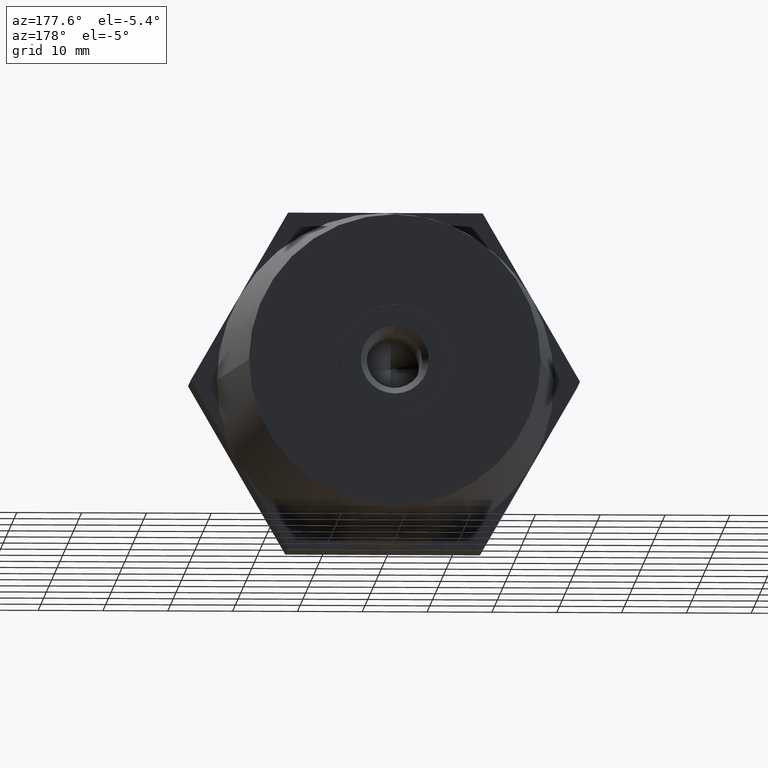
[diagram: clean part render]
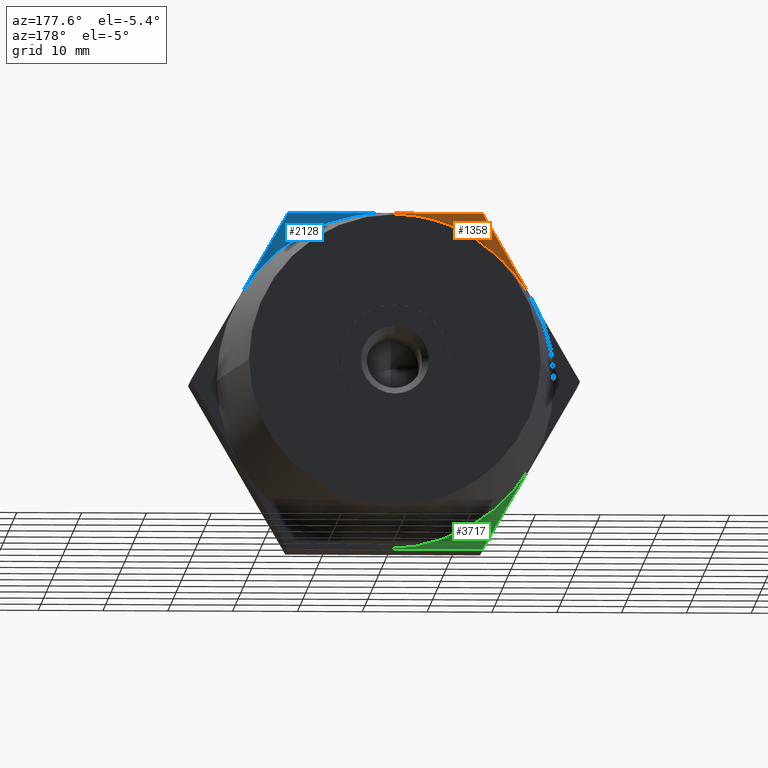
[diagram: same view with three faces highlighted in distinct colors, each labeled with its STEP entity id]
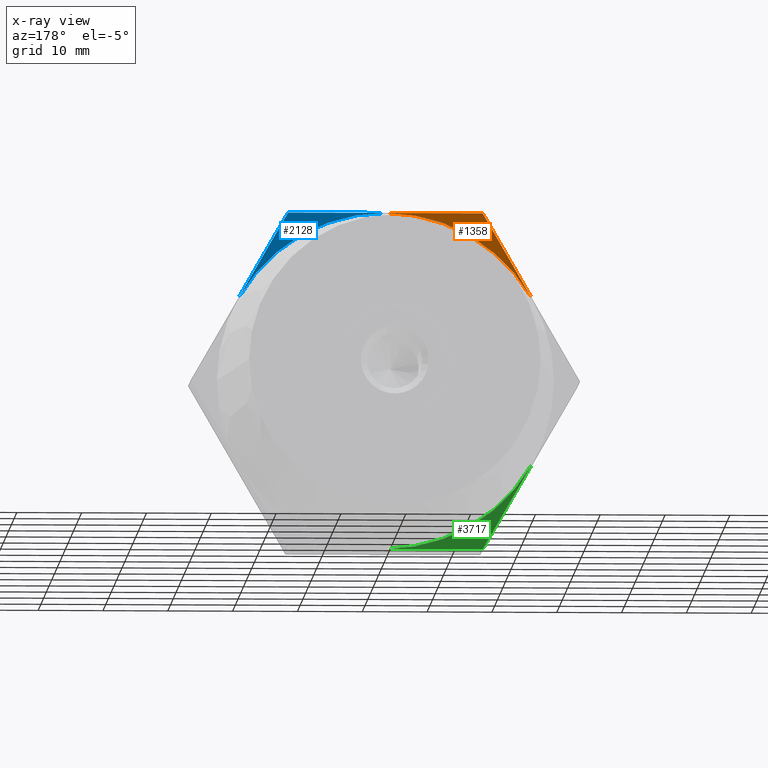
[diagram: x-ray of the same camera — body ghosted, the three highlighted faces saturated]
A machine part, auxiliary view with three faces highlighted in distinct colors.
The next image is the same camera in x-ray (body ghosted, the three faces saturated) — at least one of them is partly hidden behind the body in this view.
Their STEP definitions:

[orange] entity #1358 — the highlighted planar face has unit normal (0, 1, 0).
#791 = EDGE_LOOP ( 'NONE', ( #992, #1049, #3865 ) ) ;
#992 = ORIENTED_EDGE ( 'NONE', *, *, #4724, .F. ) ;
#1049 = ORIENTED_EDGE ( 'NONE', *, *, #1655, .T. ) ;
#1134 = VERTEX_POINT ( 'NONE', #4084 ) ;
#1169 = AXIS2_PLACEMENT_3D ( 'NONE', #2286, #5037, #4249 ) ;
#1202 = DIRECTION ( 'NONE',  ( 1.000000000000000000, 0.0000000000000000000, 1.155626614413199800E-016 ) ) ;
#1358 = ADVANCED_FACE ( 'NONE', ( #2955 ), #4229, .T. ) ;
#1598 = AXIS2_PLACEMENT_3D ( 'NONE', #3887, #4671, #2322 ) ;
#1640 = DIRECTION ( 'NONE',  ( 0.4999999999999998900, 0.0000000000000000000, 0.8660254037844387100 ) ) ;
#1655 = EDGE_CURVE ( 'NONE', #3009, #1134, #3997, .T. ) ;
#2047 = LINE ( 'NONE', #4728, #3042 ) ;
#2286 = CARTESIAN_POINT ( 'NONE',  ( 0.0000000000000000000, 5.000000000000000000, 0.0000000000000000000 ) ) ;
#2322 = DIRECTION ( 'NONE',  ( -1.000000000000000000, -1.334402673828313100E-016, 0.0000000000000000000 ) ) ;
#2809 = CARTESIAN_POINT ( 'NONE',  ( -22.51666049839540000, 5.000000000000000000, 13.00000000000000000 ) ) ;
#2832 = CARTESIAN_POINT ( 'NONE',  ( -30.02221399786055000, 5.000000000000000000, 3.447789823277004700E-015 ) ) ;
#2914 = EDGE_CURVE ( 'NONE', #1134, #4674, #2047, .T. ) ;
#2955 = FACE_OUTER_BOUND ( 'NONE', #791, .T. ) ;
#3009 = VERTEX_POINT ( 'NONE', #2809 ) ;
#3042 = VECTOR ( 'NONE', #1202, 1000.000000000000000 ) ;
#3147 = VECTOR ( 'NONE', #1640, 1000.000000000000000 ) ;
#3865 = ORIENTED_EDGE ( 'NONE', *, *, #2914, .T. ) ;
#3887 = CARTESIAN_POINT ( 'NONE',  ( 4.286263797015734900E-015, 5.000000000000000000, 0.0000000000000000000 ) ) ;
#3941 = CARTESIAN_POINT ( 'NONE',  ( -3.004629197474319600E-015, 5.000000000000000000, 26.00000000000000000 ) ) ;
#3957 = CIRCLE ( 'NONE', #1598, 26.00000000000000000 ) ;
#3997 = LINE ( 'NONE', #2832, #3147 ) ;
#4084 = CARTESIAN_POINT ( 'NONE',  ( -15.01110699893030000, 5.000000000000000000, 26.00000000000000000 ) ) ;
#4229 = PLANE ( 'NONE',  #1169 ) ;
#4249 = DIRECTION ( 'NONE',  ( 0.0000000000000000000, 0.0000000000000000000, 1.000000000000000000 ) ) ;
#4671 = DIRECTION ( 'NONE',  ( -1.224646799147352000E-016, 1.000000000000000000, 0.0000000000000000000 ) ) ;
#4674 = VERTEX_POINT ( 'NONE', #3941 ) ;
#4724 = EDGE_CURVE ( 'NONE', #3009, #4674, #3957, .T. ) ;
#4728 = CARTESIAN_POINT ( 'NONE',  ( -15.01110699893030000, 5.000000000000000000, 26.00000000000000000 ) ) ;
#5037 = DIRECTION ( 'NONE',  ( 0.0000000000000000000, 1.000000000000000000, 0.0000000000000000000 ) ) ;

[blue] entity #2128 — the highlighted planar face has unit normal (0, 1, 0).
#489 = DIRECTION ( 'NONE',  ( 0.4999999999999998900, 0.0000000000000000000, -0.8660254037844387100 ) ) ;
#551 = ORIENTED_EDGE ( 'NONE', *, *, #5031, .T. ) ;
#844 = CARTESIAN_POINT ( 'NONE',  ( 15.01110699893025000, 5.000000000000000000, 26.00000000000000000 ) ) ;
#1087 = PLANE ( 'NONE',  #1824 ) ;
#1111 = DIRECTION ( 'NONE',  ( -1.000000000000000000, -1.334402673828313100E-016, 0.0000000000000000000 ) ) ;
#1516 = CARTESIAN_POINT ( 'NONE',  ( 4.286263797015734900E-015, 5.000000000000000000, 0.0000000000000000000 ) ) ;
#1822 = EDGE_LOOP ( 'NONE', ( #2366, #551, #3980 ) ) ;
#1824 = AXIS2_PLACEMENT_3D ( 'NONE', #3886, #4670, #2728 ) ;
#2128 = ADVANCED_FACE ( 'NONE', ( #3010 ), #1087, .T. ) ;
#2366 = ORIENTED_EDGE ( 'NONE', *, *, #4683, .F. ) ;
#2576 = DIRECTION ( 'NONE',  ( 1.000000000000000000, 0.0000000000000000000, 1.155626614413199800E-016 ) ) ;
#2728 = DIRECTION ( 'NONE',  ( 0.0000000000000000000, 0.0000000000000000000, 1.000000000000000000 ) ) ;
#2988 = VERTEX_POINT ( 'NONE', #5146 ) ;
#3010 = FACE_OUTER_BOUND ( 'NONE', #1822, .T. ) ;
#3447 = AXIS2_PLACEMENT_3D ( 'NONE', #1516, #4308, #1111 ) ;
#3514 = VECTOR ( 'NONE', #2576, 1000.000000000000000 ) ;
#3728 = CARTESIAN_POINT ( 'NONE',  ( -15.01110699893030000, 5.000000000000000000, 26.00000000000000000 ) ) ;
#3863 = EDGE_CURVE ( 'NONE', #4233, #2988, #4431, .T. ) ;
#3886 = CARTESIAN_POINT ( 'NONE',  ( 0.0000000000000000000, 5.000000000000000000, 0.0000000000000000000 ) ) ;
#3941 = CARTESIAN_POINT ( 'NONE',  ( -3.004629197474319600E-015, 5.000000000000000000, 26.00000000000000000 ) ) ;
#3980 = ORIENTED_EDGE ( 'NONE', *, *, #3863, .T. ) ;
#4064 = VECTOR ( 'NONE', #489, 1000.000000000000000 ) ;
#4233 = VERTEX_POINT ( 'NONE', #4676 ) ;
#4308 = DIRECTION ( 'NONE',  ( -1.224646799147352000E-016, 1.000000000000000000, 0.0000000000000000000 ) ) ;
#4423 = LINE ( 'NONE', #3728, #3514 ) ;
#4431 = LINE ( 'NONE', #844, #4064 ) ;
#4494 = CIRCLE ( 'NONE', #3447, 26.00000000000000000 ) ;
#4670 = DIRECTION ( 'NONE',  ( 0.0000000000000000000, 1.000000000000000000, 0.0000000000000000000 ) ) ;
#4674 = VERTEX_POINT ( 'NONE', #3941 ) ;
#4676 = CARTESIAN_POINT ( 'NONE',  ( 15.01110699893025000, 5.000000000000000000, 26.00000000000000000 ) ) ;
#4683 = EDGE_CURVE ( 'NONE', #4674, #2988, #4494, .T. ) ;
#5031 = EDGE_CURVE ( 'NONE', #4674, #4233, #4423, .T. ) ;
#5146 = CARTESIAN_POINT ( 'NONE',  ( 22.51666049839540000, 5.000000000000000000, 13.00000000000000000 ) ) ;

[green] entity #3717 — the highlighted planar face has unit normal (0, 1, 0).
#37 = DIRECTION ( 'NONE',  ( -1.000000000000000000, -1.334402673828313100E-016, 0.0000000000000000000 ) ) ;
#59 = ORIENTED_EDGE ( 'NONE', *, *, #1698, .T. ) ;
#358 = DIRECTION ( 'NONE',  ( 0.0000000000000000000, 0.0000000000000000000, 1.000000000000000000 ) ) ;
#532 = LINE ( 'NONE', #4500, #1798 ) ;
#1152 = FACE_OUTER_BOUND ( 'NONE', #4774, .T. ) ;
#1356 = ORIENTED_EDGE ( 'NONE', *, *, #1637, .F. ) ;
#1637 = EDGE_CURVE ( 'NONE', #3132, #4029, #5060, .T. ) ;
#1698 = EDGE_CURVE ( 'NONE', #3132, #2139, #2346, .T. ) ;
#1798 = VECTOR ( 'NONE', #4113, 1000.000000000000000 ) ;
#2091 = CARTESIAN_POINT ( 'NONE',  ( -3.374459510989179900E-031, 5.000000000000000000, -26.00000000000000000 ) ) ;
#2139 = VERTEX_POINT ( 'NONE', #4685 ) ;
#2184 = CARTESIAN_POINT ( 'NONE',  ( -22.51666049839540000, 5.000000000000000000, -13.00000000000000000 ) ) ;
#2346 = LINE ( 'NONE', #4480, #4305 ) ;
#2379 = EDGE_CURVE ( 'NONE', #2139, #4029, #532, .T. ) ;
#2446 = CARTESIAN_POINT ( 'NONE',  ( 4.286263797015734900E-015, 5.000000000000000000, 0.0000000000000000000 ) ) ;
#2786 = DIRECTION ( 'NONE',  ( 0.0000000000000000000, 1.000000000000000000, 0.0000000000000000000 ) ) ;
#3132 = VERTEX_POINT ( 'NONE', #2091 ) ;
#3503 = AXIS2_PLACEMENT_3D ( 'NONE', #2446, #3626, #37 ) ;
#3626 = DIRECTION ( 'NONE',  ( -1.224646799147352000E-016, 1.000000000000000000, 0.0000000000000000000 ) ) ;
#3717 = ADVANCED_FACE ( 'NONE', ( #1152 ), #5153, .T. ) ;
#3862 = ORIENTED_EDGE ( 'NONE', *, *, #2379, .T. ) ;
#3949 = CARTESIAN_POINT ( 'NONE',  ( 0.0000000000000000000, 5.000000000000000000, 0.0000000000000000000 ) ) ;
#4029 = VERTEX_POINT ( 'NONE', #2184 ) ;
#4113 = DIRECTION ( 'NONE',  ( -0.4999999999999998900, 0.0000000000000000000, 0.8660254037844387100 ) ) ;
#4305 = VECTOR ( 'NONE', #4930, 1000.000000000000000 ) ;
#4480 = CARTESIAN_POINT ( 'NONE',  ( 15.01110699893025000, 5.000000000000000000, -26.00000000000000000 ) ) ;
#4500 = CARTESIAN_POINT ( 'NONE',  ( -15.01110699893030000, 5.000000000000000000, -26.00000000000000000 ) ) ;
#4685 = CARTESIAN_POINT ( 'NONE',  ( -15.01110699893030000, 5.000000000000000000, -26.00000000000000000 ) ) ;
#4774 = EDGE_LOOP ( 'NONE', ( #1356, #59, #3862 ) ) ;
#4930 = DIRECTION ( 'NONE',  ( -1.000000000000000000, 0.0000000000000000000, 0.0000000000000000000 ) ) ;
#5002 = AXIS2_PLACEMENT_3D ( 'NONE', #3949, #2786, #358 ) ;
#5060 = CIRCLE ( 'NONE', #3503, 26.00000000000000000 ) ;
#5153 = PLANE ( 'NONE',  #5002 ) ;